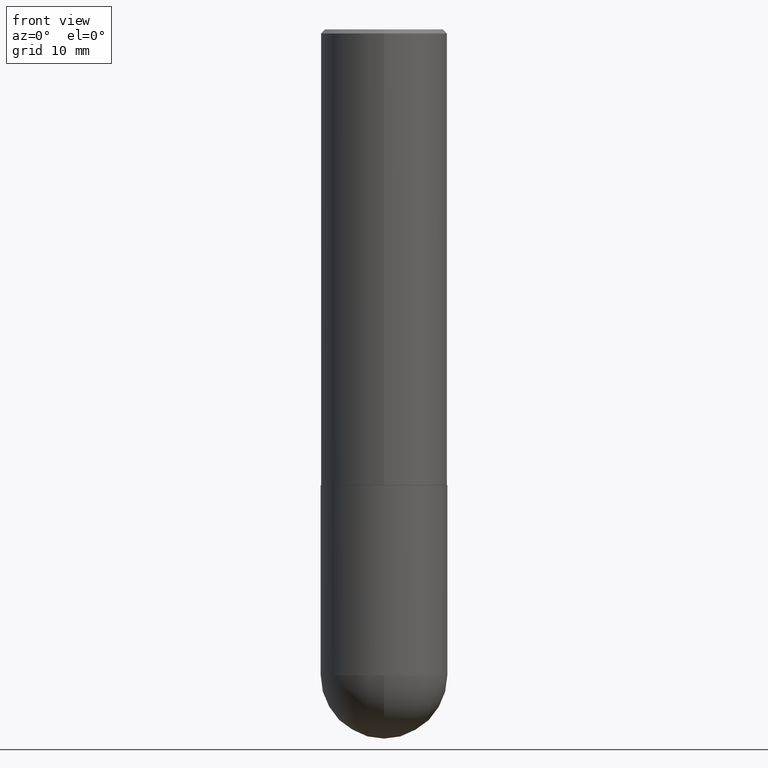
[diagram: clean part render]
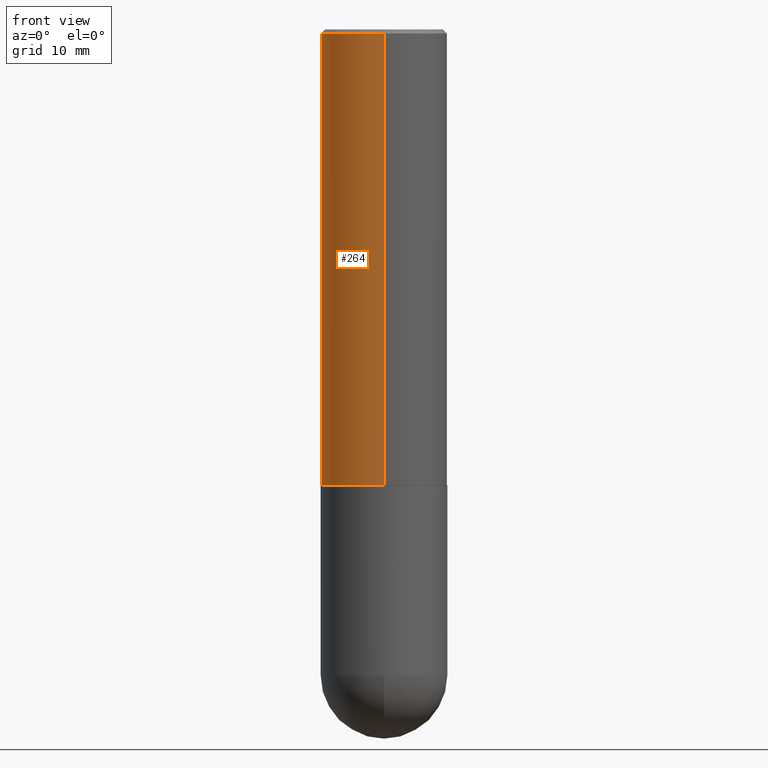
[diagram: same view with one face highlighted and labeled with its STEP entity id]
A machine part, front view. The second image highlights one B-rep face of the part: STEP entity #264.
In plain terms, the highlighted cylindrical surface (partial cylindrical patch) has radius 7.9375 mm, axis along (-0, 0, 1).
Its self-contained STEP definition (entity closure, byte-faithful):
#30 = DIRECTION ( 'NONE',  ( -6.982962677686265922E-15, -1.000000000000000000, 3.496765431890253764E-15 ) ) ;
#37 = CIRCLE ( 'NONE', #95, 0.3125000000000002776 ) ;
#44 = EDGE_CURVE ( 'NONE', #201, #393, #371, .T. ) ;
#58 = VERTEX_POINT ( 'NONE', #125 ) ;
#63 = DIRECTION ( 'NONE',  ( -6.982962677686265922E-15, -1.000000000000000000, 3.491020497515737760E-15 ) ) ;
#65 = CARTESIAN_POINT ( 'NONE',  ( -2.182175836776905099E-15, -0.3125000000000081601, -2.248999999999998778 ) ) ;
#68 = VECTOR ( 'NONE', #98, 39.37007874015748143 ) ;
#69 = CARTESIAN_POINT ( 'NONE',  ( 2.220446049250314264E-15, 0.3125000000000002220, -1.090943905473668790E-15 ) ) ;
#76 = ORIENTED_EDGE ( 'NONE', *, *, #44, .F. ) ;
#95 = AXIS2_PLACEMENT_3D ( 'NONE', #196, #349, #30 ) ;
#98 = DIRECTION ( 'NONE',  ( -2.445790609964098896E-29, 3.491020497515737366E-15, 1.000000000000000000 ) ) ;
#104 = ORIENTED_EDGE ( 'NONE', *, *, #132, .T. ) ;
#116 = EDGE_LOOP ( 'NONE', ( #184, #104, #186, #76 ) ) ;
#121 = VERTEX_POINT ( 'NONE', #65 ) ;
#125 = CARTESIAN_POINT ( 'NONE',  ( 2.220446049250342269E-15, 0.3124999999999924505, -2.249000000000000998 ) ) ;
#126 = VECTOR ( 'NONE', #329, 39.37007874015748143 ) ;
#132 = EDGE_CURVE ( 'NONE', #58, #121, #37, .T. ) ;
#160 = FACE_OUTER_BOUND ( 'NONE', #116, .T. ) ;
#182 = DIRECTION ( 'NONE',  ( -6.982962677686265133E-15, -1.000000000000000000, 3.496765431890254947E-15 ) ) ;
#184 = ORIENTED_EDGE ( 'NONE', *, *, #353, .F. ) ;
#186 = ORIENTED_EDGE ( 'NONE', *, *, #187, .T. ) ;
#187 = EDGE_CURVE ( 'NONE', #121, #393, #286, .T. ) ;
#196 = CARTESIAN_POINT ( 'NONE',  ( 5.500583081809257409E-29, -7.851305098912893929E-15, -2.248999999999999666 ) ) ;
#201 = VERTEX_POINT ( 'NONE', #351 ) ;
#251 = CARTESIAN_POINT ( 'NONE',  ( 0.000000000000000000, 0.000000000000000000, 0.000000000000000000 ) ) ;
#264 = ADVANCED_FACE ( 'NONE', ( #160 ), #282, .T. ) ;
#282 = CYLINDRICAL_SURFACE ( 'NONE', #399, 0.3125000000000002220 ) ;
#286 = LINE ( 'NONE', #323, #68 ) ;
#290 = AXIS2_PLACEMENT_3D ( 'NONE', #343, #396, #182 ) ;
#323 = CARTESIAN_POINT ( 'NONE',  ( -2.182175836776959530E-15, -0.3125000000000002220, 1.090943905473668790E-15 ) ) ;
#329 = DIRECTION ( 'NONE',  ( -2.445790609964098896E-29, 3.491020497515737366E-15, 1.000000000000000000 ) ) ;
#343 = CARTESIAN_POINT ( 'NONE',  ( 4.891581219928215448E-31, -6.982040995031500715E-17, -0.02000000000000007327 ) ) ;
#349 = DIRECTION ( 'NONE',  ( -2.445790609964098896E-29, 3.491020497515737760E-15, 1.000000000000000000 ) ) ;
#351 = CARTESIAN_POINT ( 'NONE',  ( 2.182175836776959530E-15, 0.3125000000000000555, -0.02000000000000116615 ) ) ;
#353 = EDGE_CURVE ( 'NONE', #58, #201, #358, .T. ) ;
#358 = LINE ( 'NONE', #69, #126 ) ;
#371 = CIRCLE ( 'NONE', #290, 0.3125000000000001665 ) ;
#379 = DIRECTION ( 'NONE',  ( -2.445790609964098896E-29, 3.491020497515737760E-15, 1.000000000000000000 ) ) ;
#392 = CARTESIAN_POINT ( 'NONE',  ( -2.143905624303604008E-15, -0.3125000000000002220, -0.01999999999999898040 ) ) ;
#393 = VERTEX_POINT ( 'NONE', #392 ) ;
#396 = DIRECTION ( 'NONE',  ( -2.445790609964098896E-29, 3.491020497515737760E-15, 1.000000000000000000 ) ) ;
#399 = AXIS2_PLACEMENT_3D ( 'NONE', #251, #379, #63 ) ;